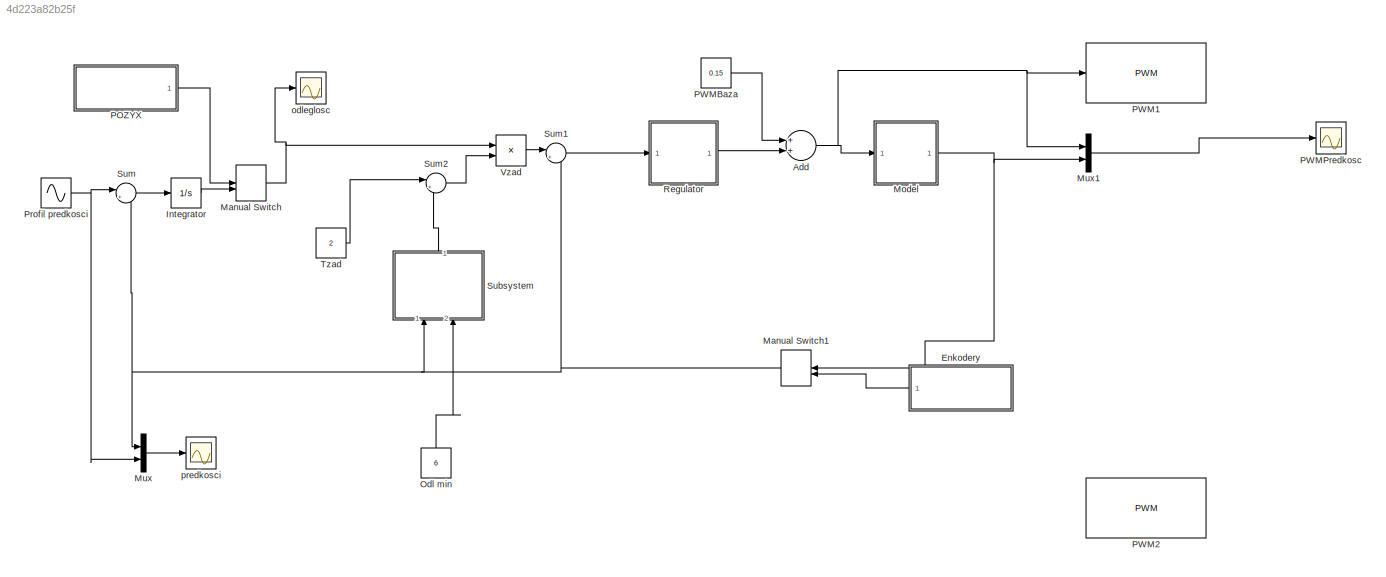
MODEL slx_4d223a82b25f
KIND model
CONFIG AbsTol = auto
CONFIG EnableMultiTasking = off
CONFIG FixedStep = 0.001
CONFIG MaxStep = auto
CONFIG MinStep = auto
CONFIG RelTol = 1e-3
CONFIG SampleTimeConstraint = Unconstrained
CONFIG Solver = FixedStepAuto
CONFIG SolverName = FixedStepAuto
CONFIG StartTime = 0.0
CONFIG StopTime = 100.0
BLOCK [Sum] Add
  InputSameDT = off
  OutDataTypeStr = Inherit: Inherit via internal rule
  Ports = [2, 1]
  SaturateOnIntegerOverflow = off
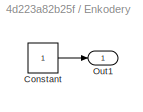
BLOCK [SubSystem] Enkodery
  Ports = [0, 1]
  RequestExecContextInheritance = off
BLOCK [Constant] Enkodery/Constant
BLOCK [Outport] Enkodery/Out1
  IconDisplay = Port number
BLOCK [Integrator] Integrator
  InitialCondition = 3
  Ports = [1, 1]
BLOCK [ManualSwitch] Manual Switch
  CurrentSetting = 0
BLOCK [ManualSwitch] Manual Switch1
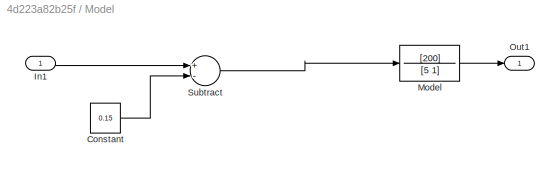
BLOCK [SubSystem] Model
  Ports = [1, 1]
  RequestExecContextInheritance = off
BLOCK [Constant] Model/Constant
  Value = 0.15
BLOCK [Inport] Model/In1
  IconDisplay = Port number
BLOCK [TransferFcn] Model/Model
  Denominator = [5 1]
  Numerator = [200]
BLOCK [Outport] Model/Out1
  IconDisplay = Port number
BLOCK [Sum] Model/Subtract
  InputSameDT = off
  Inputs = +-
  OutDataTypeStr = Inherit: Inherit via internal rule
  Ports = [2, 1]
  SaturateOnIntegerOverflow = off
BLOCK [Mux] Mux
  DisplayOption = bar
  Inputs = 2
  Ports = [2, 1]
BLOCK [Mux] Mux1
  DisplayOption = bar
  Inputs = 2
  Ports = [2, 1]
BLOCK [Constant] Odl min
  Value = 6
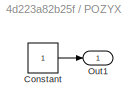
BLOCK [SubSystem] POZYX
  Ports = [0, 1]
  RequestExecContextInheritance = off
BLOCK [Constant] POZYX/Constant
BLOCK [Outport] POZYX/Out1
  IconDisplay = Port number
BLOCK [Reference] PWM1  REF=raspberrypilib/PWM
  Ports = [1]
  SourceBlock = raspberrypilib/PWM
  SourceProductBaseCode = RASPPI
  SourceProductName = Simulink Support Package for Raspberry Pi Hardware
  SourceType = raspi.internal.PWMBlock
BLOCK [Reference] PWM2  REF=raspberrypilib/PWM
  Ports = [1]
  SourceBlock = raspberrypilib/PWM
  SourceProductBaseCode = RASPPI
  SourceProductName = Simulink Support Package for Raspberry Pi Hardware
  SourceType = raspi.internal.PWMBlock
BLOCK [Constant] PWMBaza
  Value = 0.15
BLOCK [Scope] PWMPredkosc
  Floating = off
  NumInputPorts = 1
  Ports = [1]
  ScopeSpecificationString = Simulink.scopes.TimeScopeBlockCfg('CurrentConfiguration', extmgr.ConfigurationSet(extmgr.Configuration('Core','General UI',true),extmgr.Configuration('Core','Source UI',true),extmgr.Configuration('Sources','WiredSimulink',true,'DataLoggingVariableName','ScopeData1'),extmgr.Configuration('Visuals','Time Domain',true,'SerializedDisplays',{struct('MinYLimReal','0.17329','MaxYLimReal','0.19731','YLabe...<+1440ch>
BLOCK [Sin] Profil predkosci
  Amplitude = 0.5
  Bias = 6
  Frequency = 0.5
  Ports = [0, 1]
  SampleTime = 0
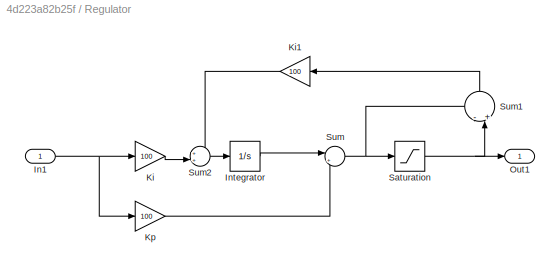
BLOCK [SubSystem] Regulator
  Ports = [1, 1]
  RequestExecContextInheritance = off
BLOCK [Inport] Regulator/In1
  IconDisplay = Port number
BLOCK [Integrator] Regulator/Integrator
  Ports = [1, 1]
BLOCK [Gain] Regulator/Ki
  Gain = 100
  OutDataTypeStr = Inherit: Inherit via internal rule
  ParamDataTypeStr = Inherit: Inherit via internal rule
  SaturateOnIntegerOverflow = off
BLOCK [Gain] Regulator/Ki1
  Gain = 100
  OutDataTypeStr = Inherit: Inherit via internal rule
  ParamDataTypeStr = Inherit: Inherit via internal rule
  SaturateOnIntegerOverflow = off
BLOCK [Gain] Regulator/Kp
  Gain = 100
  OutDataTypeStr = Inherit: Inherit via internal rule
  ParamDataTypeStr = Inherit: Inherit via internal rule
  SaturateOnIntegerOverflow = off
BLOCK [Outport] Regulator/Out1
  IconDisplay = Port number
BLOCK [Saturate] Regulator/Saturation
  InputPortMap = u0
  LowerLimit = -0.05
  Ports = [1, 1]
  UpperLimit = 0.05
BLOCK [Sum] Regulator/Sum
  IconShape = round
  InputSameDT = off
  Inputs = |++
  OutDataTypeStr = Inherit: Inherit via internal rule
  Ports = [2, 1]
  SaturateOnIntegerOverflow = off
BLOCK [Sum] Regulator/Sum1
  IconShape = round
  InputSameDT = off
  Inputs = -|+||
  OutDataTypeStr = Inherit: Inherit via internal rule
  Ports = [2, 1]
  SaturateOnIntegerOverflow = off
BLOCK [Sum] Regulator/Sum2
  IconShape = round
  InputSameDT = off
  Inputs = ++|
  OutDataTypeStr = Inherit: Inherit via internal rule
  Ports = [2, 1]
  SaturateOnIntegerOverflow = off
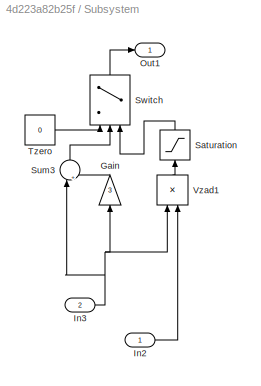
BLOCK [SubSystem] Subsystem
  Ports = [2, 1]
  RequestExecContextInheritance = off
BLOCK [Gain] Subsystem/Gain
  Gain = 3
  OutDataTypeStr = Inherit: Inherit via internal rule
  ParamDataTypeStr = Inherit: Inherit via internal rule
  SaturateOnIntegerOverflow = off
BLOCK [Inport] Subsystem/In2
  IconDisplay = Port number
BLOCK [Inport] Subsystem/In3
  IconDisplay = Port number
  Port = 2
BLOCK [Outport] Subsystem/Out1
  IconDisplay = Port number
BLOCK [Saturate] Subsystem/Saturation
  InputPortMap = u0
  LowerLimit = 0
  Ports = [1, 1]
  UpperLimit = 20
BLOCK [Sum] Subsystem/Sum3
  IconShape = round
  InputSameDT = off
  Inputs = |+-
  OutDataTypeStr = Inherit: Inherit via internal rule
  Ports = [2, 1]
  SaturateOnIntegerOverflow = off
BLOCK [Switch] Subsystem/Switch
  InputSameDT = off
  SaturateOnIntegerOverflow = off
BLOCK [Constant] Subsystem/Tzero
  Value = 0
BLOCK [Product] Subsystem/Vzad1
  InputSameDT = off
  Inputs = */
  OutDataTypeStr = Inherit: Inherit via internal rule
  Ports = [2, 1]
  RndMeth = Floor
  SaturateOnIntegerOverflow = off
BLOCK [Sum] Sum
  IconShape = round
  InputSameDT = off
  Inputs = |+-
  OutDataTypeStr = Inherit: Inherit via internal rule
  Ports = [2, 1]
  SaturateOnIntegerOverflow = off
BLOCK [Sum] Sum1
  IconShape = round
  InputSameDT = off
  Inputs = |+-
  OutDataTypeStr = Inherit: Inherit via internal rule
  Ports = [2, 1]
  SaturateOnIntegerOverflow = off
BLOCK [Sum] Sum2
  IconShape = round
  InputSameDT = off
  Inputs = |++
  OutDataTypeStr = Inherit: Inherit via internal rule
  Ports = [2, 1]
  SaturateOnIntegerOverflow = off
BLOCK [Constant] Tzad
  Value = 2
BLOCK [Product] Vzad
  InputSameDT = off
  Inputs = */
  OutDataTypeStr = Inherit: Inherit via internal rule
  Ports = [2, 1]
  RndMeth = Floor
  SaturateOnIntegerOverflow = off
BLOCK [Scope] odleglosc 
  Floating = off
  NumInputPorts = 1
  Ports = [1]
  ScopeSpecificationString = Simulink.scopes.TimeScopeBlockCfg('CurrentConfiguration', extmgr.ConfigurationSet(extmgr.Configuration('Core','General UI',true),extmgr.Configuration('Core','Source UI',true),extmgr.Configuration('Sources','WiredSimulink',true,'DataLoggingVariableName','ScopeData1'),extmgr.Configuration('Visuals','Time Domain',true,'SerializedDisplays',{struct('MinYLimReal','0.838','MaxYLimReal','22.45803','YLabel...<+1420ch>
BLOCK [Scope] predkosci
  Floating = off
  NumInputPorts = 1
  Ports = [1]
  ScopeSpecificationString = Simulink.scopes.TimeScopeBlockCfg('CurrentConfiguration', extmgr.ConfigurationSet(extmgr.Configuration('Core','General UI',true),extmgr.Configuration('Core','Source UI',true),extmgr.Configuration('Sources','WiredSimulink',true),extmgr.Configuration('Visuals','Time Domain',true,'SerializedDisplays',{struct('MinYLimReal','-3.76757','MaxYLimReal','16.09939','YLabelReal','','MinYLimMag','0.00000','Max...<+1376ch>
NET Add:1 -> Model:1, Mux1:1, PWM1:1
LINE Enkodery/Constant:1 -> Enkodery/Out1:1
LINE Enkodery:1 -> Manual Switch1:2
LINE Integrator:1 -> Manual Switch:2
NET Manual Switch1:1 -> Mux:1, Subsystem:1, Sum1:2, Sum:2
NET Manual Switch:1 -> Vzad:1, odleglosc :1
LINE Model/Constant:1 -> Model/Subtract:2
LINE Model/In1:1 -> Model/Subtract:1
LINE Model/Model:1 -> Model/Out1:1
LINE Model/Subtract:1 -> Model/Model:1
NET Model:1 -> Manual Switch1:1, Mux1:2
LINE Mux1:1 -> PWMPredkosc:1
LINE Mux:1 -> predkosci:1
LINE Odl min:1 -> Subsystem:2
LINE POZYX/Constant:1 -> POZYX/Out1:1
LINE POZYX:1 -> Manual Switch:1
LINE PWMBaza:1 -> Add:1
NET Profil predkosci:1 -> Mux:2, Sum:1
NET Regulator/In1:1 -> Regulator/Ki:1, Regulator/Kp:1
LINE Regulator/Integrator:1 -> Regulator/Sum:1
LINE Regulator/Ki1:1 -> Regulator/Sum2:1
LINE Regulator/Ki:1 -> Regulator/Sum2:2
LINE Regulator/Kp:1 -> Regulator/Sum:2
NET Regulator/Saturation:1 -> Regulator/Out1:1, Regulator/Sum1:2
LINE Regulator/Sum1:1 -> Regulator/Ki1:1
LINE Regulator/Sum2:1 -> Regulator/Integrator:1
NET Regulator/Sum:1 -> Regulator/Saturation:1, Regulator/Sum1:1
LINE Regulator:1 -> Add:2
LINE Subsystem/Gain:1 -> Subsystem/Sum3:2
LINE Subsystem/In2:1 -> Subsystem/Vzad1:2
NET Subsystem/In3:1 -> Subsystem/Gain:1, Subsystem/Sum3:1, Subsystem/Vzad1:1
LINE Subsystem/Saturation:1 -> Subsystem/Switch:3
LINE Subsystem/Sum3:1 -> Subsystem/Switch:2
LINE Subsystem/Switch:1 -> Subsystem/Out1:1
LINE Subsystem/Tzero:1 -> Subsystem/Switch:1
LINE Subsystem/Vzad1:1 -> Subsystem/Saturation:1
LINE Subsystem:1 -> Sum2:2
LINE Sum1:1 -> Regulator:1
LINE Sum2:1 -> Vzad:2
LINE Sum:1 -> Integrator:1
LINE Tzad:1 -> Sum2:1
LINE Vzad:1 -> Sum1:1
note: NET lines group one-source signal fan-out (src -> all destinations, sorted); 1:1 wires keep LINE
